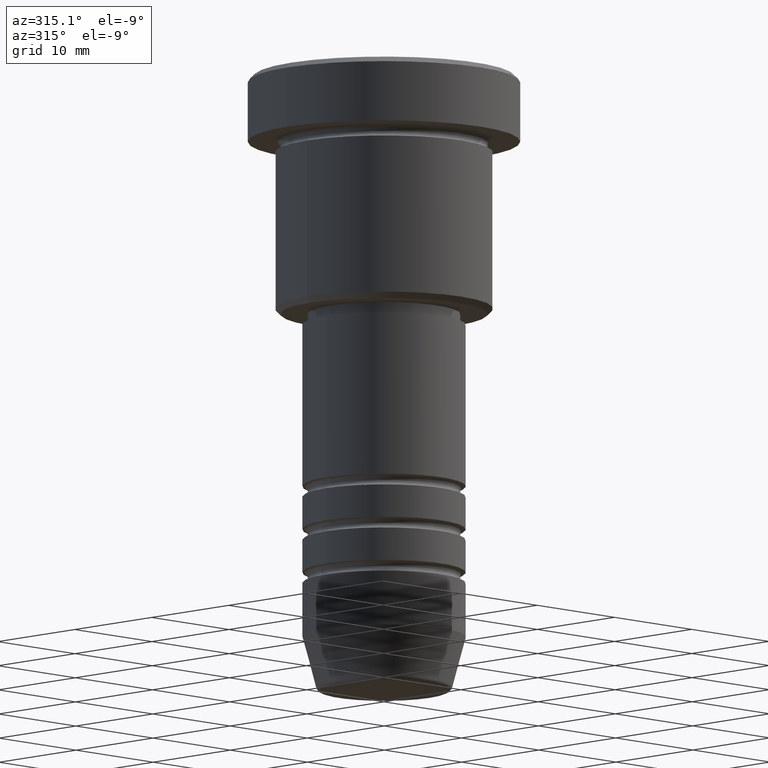
[diagram: clean part render]
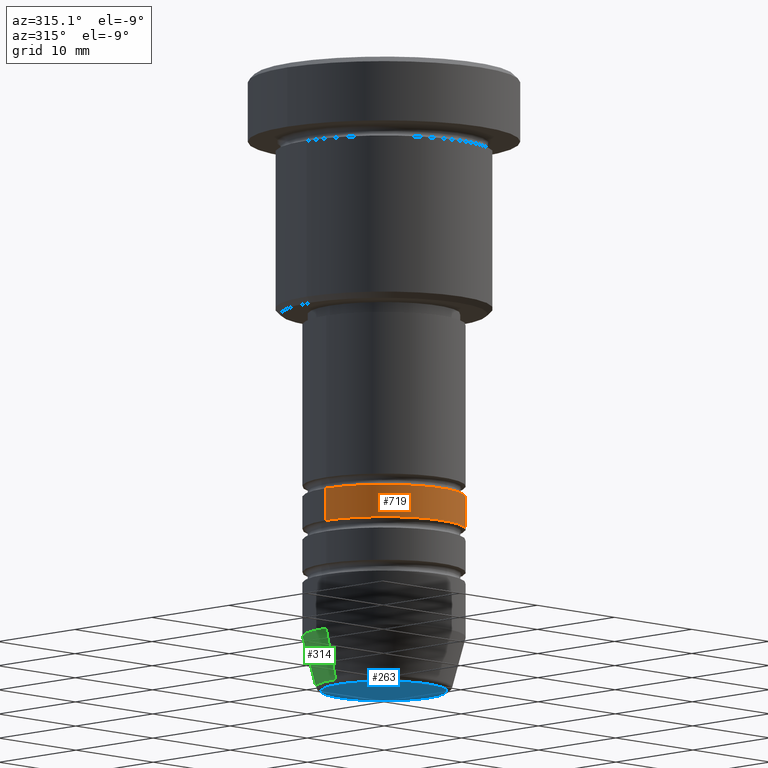
[diagram: same view with three faces highlighted in distinct colors, each labeled with its STEP entity id]
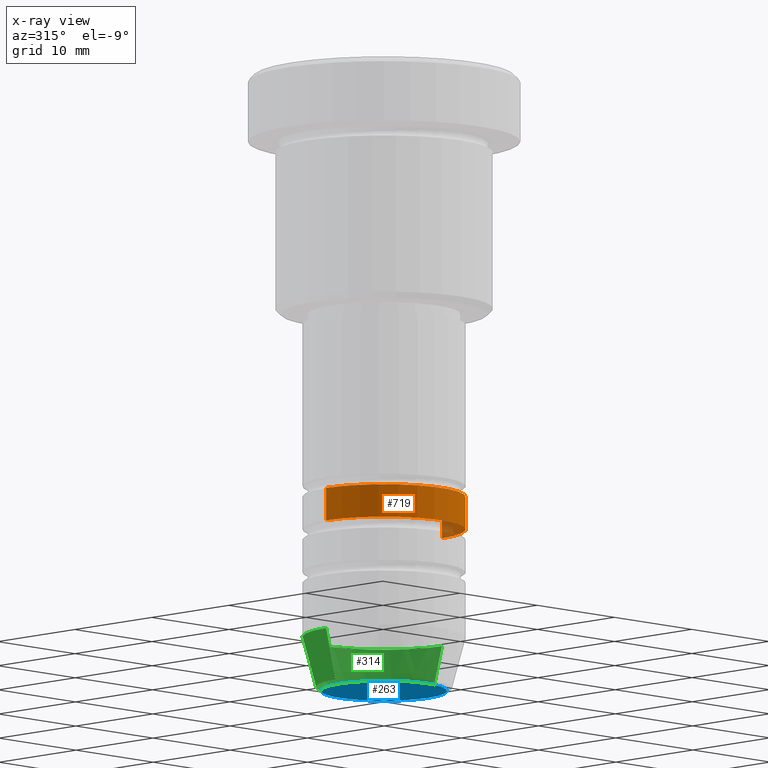
[diagram: x-ray of the same camera — body ghosted, the three highlighted faces saturated]
A machine part, auxiliary view with three faces highlighted in distinct colors.
The next image is the same camera in x-ray (body ghosted, the three faces saturated) — at least one of them is partly hidden behind the body in this view.
Their STEP definitions:

[orange] entity #719 — the highlighted cylindrical surface (partial cylindrical patch) has radius 7.5 mm, axis along (-0, -0, 1).
#8 = VECTOR ( 'NONE', #73, 1000.000000000000000 ) ;
#73 = DIRECTION ( 'NONE',  ( -0.000000000000000000, -0.000000000000000000, 1.000000000000000000 ) ) ;
#105 = CARTESIAN_POINT ( 'NONE',  ( 7.500000000000000000, 0.000000000000000000, -38.99999999999989342 ) ) ;
#125 = DIRECTION ( 'NONE',  ( -0.000000000000000000, -0.000000000000000000, 1.000000000000000000 ) ) ;
#152 = DIRECTION ( 'NONE',  ( -0.000000000000000000, -0.000000000000000000, 1.000000000000000000 ) ) ;
#221 = CARTESIAN_POINT ( 'NONE',  ( 7.500000000000001776, 0.000000000000000000, 0.000000000000000000 ) ) ;
#254 = ORIENTED_EDGE ( 'NONE', *, *, #435, .T. ) ;
#309 = ORIENTED_EDGE ( 'NONE', *, *, #1029, .T. ) ;
#323 = CARTESIAN_POINT ( 'NONE',  ( 0.000000000000000000, 0.000000000000000000, -41.99999999999991473 ) ) ;
#325 = CARTESIAN_POINT ( 'NONE',  ( -7.500000000000000000, 9.184850993605147944E-16, -38.99999999999989342 ) ) ;
#350 = AXIS2_PLACEMENT_3D ( 'NONE', #1165, #709, #437 ) ;
#384 = AXIS2_PLACEMENT_3D ( 'NONE', #323, #152, #792 ) ;
#401 = VECTOR ( 'NONE', #125, 1000.000000000000000 ) ;
#417 = DIRECTION ( 'NONE',  ( -0.000000000000000000, -0.000000000000000000, 1.000000000000000000 ) ) ;
#435 = EDGE_CURVE ( 'NONE', #1155, #609, #914, .T. ) ;
#437 = DIRECTION ( 'NONE',  ( 1.000000000000000000, 0.000000000000000000, 0.000000000000000000 ) ) ;
#486 = ORIENTED_EDGE ( 'NONE', *, *, #847, .F. ) ;
#499 = LINE ( 'NONE', #221, #401 ) ;
#509 = CARTESIAN_POINT ( 'NONE',  ( 0.000000000000000000, 0.000000000000000000, 0.000000000000000000 ) ) ;
#546 = CARTESIAN_POINT ( 'NONE',  ( -7.500000000000001776, 9.184850993605149917E-16, 0.000000000000000000 ) ) ;
#603 = EDGE_LOOP ( 'NONE', ( #963, #254, #309, #486 ) ) ;
#607 = FACE_OUTER_BOUND ( 'NONE', #603, .T. ) ;
#609 = VERTEX_POINT ( 'NONE', #1063 ) ;
#611 = LINE ( 'NONE', #546, #8 ) ;
#709 = DIRECTION ( 'NONE',  ( -0.000000000000000000, -0.000000000000000000, 1.000000000000000000 ) ) ;
#719 = ADVANCED_FACE ( 'NONE', ( #607 ), #866, .T. ) ;
#782 = DIRECTION ( 'NONE',  ( 1.000000000000000000, 0.000000000000000000, 0.000000000000000000 ) ) ;
#792 = DIRECTION ( 'NONE',  ( 1.000000000000000000, 0.000000000000000000, 0.000000000000000000 ) ) ;
#823 = EDGE_CURVE ( 'NONE', #1155, #1142, #611, .T. ) ;
#847 = EDGE_CURVE ( 'NONE', #1142, #898, #1058, .T. ) ;
#866 = CYLINDRICAL_SURFACE ( 'NONE', #1076, 7.500000000000001776 ) ;
#898 = VERTEX_POINT ( 'NONE', #105 ) ;
#914 = CIRCLE ( 'NONE', #384, 7.500000000000002665 ) ;
#963 = ORIENTED_EDGE ( 'NONE', *, *, #823, .F. ) ;
#1029 = EDGE_CURVE ( 'NONE', #609, #898, #499, .T. ) ;
#1058 = CIRCLE ( 'NONE', #350, 7.500000000000000000 ) ;
#1062 = CARTESIAN_POINT ( 'NONE',  ( -7.500000000000003553, 9.184850993605151889E-16, -41.99999999999991473 ) ) ;
#1063 = CARTESIAN_POINT ( 'NONE',  ( 7.500000000000002665, 0.000000000000000000, -41.99999999999991473 ) ) ;
#1076 = AXIS2_PLACEMENT_3D ( 'NONE', #509, #417, #782 ) ;
#1142 = VERTEX_POINT ( 'NONE', #325 ) ;
#1155 = VERTEX_POINT ( 'NONE', #1062 ) ;
#1165 = CARTESIAN_POINT ( 'NONE',  ( 0.000000000000000000, 0.000000000000000000, -38.99999999999989342 ) ) ;

[blue] entity #263 — the highlighted planar face has unit normal (0, -0, 1).
#17 = CARTESIAN_POINT ( 'NONE',  ( -5.776590543854903892, 7.370012612361443628E-16, -57.00000000000000000 ) ) ;
#70 = EDGE_CURVE ( 'NONE', #294, #950, #425, .T. ) ;
#184 = AXIS2_PLACEMENT_3D ( 'NONE', #1137, #310, #212 ) ;
#212 = DIRECTION ( 'NONE',  ( 1.000000000000000000, 0.000000000000000000, 0.000000000000000000 ) ) ;
#244 = ORIENTED_EDGE ( 'NONE', *, *, #1101, .T. ) ;
#263 = ADVANCED_FACE ( 'NONE', ( #289 ), #684, .F. ) ;
#289 = FACE_OUTER_BOUND ( 'NONE', #367, .T. ) ;
#294 = VERTEX_POINT ( 'NONE', #779 ) ;
#303 = DIRECTION ( 'NONE',  ( 1.000000000000000000, 0.000000000000000000, 0.000000000000000000 ) ) ;
#304 = AXIS2_PLACEMENT_3D ( 'NONE', #606, #421, #303 ) ;
#310 = DIRECTION ( 'NONE',  ( 0.000000000000000000, -0.000000000000000000, 1.000000000000000000 ) ) ;
#320 = DIRECTION ( 'NONE',  ( 1.000000000000000000, 0.000000000000000000, 0.000000000000000000 ) ) ;
#367 = EDGE_LOOP ( 'NONE', ( #749, #244 ) ) ;
#421 = DIRECTION ( 'NONE',  ( 0.000000000000000000, 0.000000000000000000, -1.000000000000000000 ) ) ;
#425 = CIRCLE ( 'NONE', #619, 5.776590543854903892 ) ;
#606 = CARTESIAN_POINT ( 'NONE',  ( 0.000000000000000000, 0.000000000000000000, -57.00000000000000000 ) ) ;
#619 = AXIS2_PLACEMENT_3D ( 'NONE', #877, #1146, #320 ) ;
#684 = PLANE ( 'NONE',  #184 ) ;
#749 = ORIENTED_EDGE ( 'NONE', *, *, #70, .T. ) ;
#779 = CARTESIAN_POINT ( 'NONE',  ( 5.776590543854903892, 0.000000000000000000, -57.00000000000000000 ) ) ;
#877 = CARTESIAN_POINT ( 'NONE',  ( 0.000000000000000000, 0.000000000000000000, -57.00000000000000000 ) ) ;
#927 = CIRCLE ( 'NONE', #304, 5.776590543854903892 ) ;
#950 = VERTEX_POINT ( 'NONE', #17 ) ;
#1101 = EDGE_CURVE ( 'NONE', #950, #294, #927, .T. ) ;
#1137 = CARTESIAN_POINT ( 'NONE',  ( 0.000000000000000000, 0.000000000000000000, -57.00000000000000000 ) ) ;
#1146 = DIRECTION ( 'NONE',  ( 0.000000000000000000, 0.000000000000000000, -1.000000000000000000 ) ) ;

[green] entity #314 — the highlighted conical surface has half-angle 15 deg.
#69 = AXIS2_PLACEMENT_3D ( 'NONE', #602, #969, #1095 ) ;
#81 = EDGE_CURVE ( 'NONE', #358, #889, #578, .T. ) ;
#100 = CARTESIAN_POINT ( 'NONE',  ( 7.500000000000000000, 0.000000000000000000, -52.00000000000000711 ) ) ;
#123 = VERTEX_POINT ( 'NONE', #924 ) ;
#128 = ORIENTED_EDGE ( 'NONE', *, *, #81, .F. ) ;
#136 = EDGE_CURVE ( 'NONE', #800, #358, #827, .T. ) ;
#178 = CONICAL_SURFACE ( 'NONE', #655, 7.500000000000000000, 0.2617993877991500740 ) ;
#271 = DIRECTION ( 'NONE',  ( -0.2588190451025213501, 3.169619151431772337E-17, 0.9659258262890680902 ) ) ;
#291 = DIRECTION ( 'NONE',  ( -0.000000000000000000, -0.000000000000000000, 1.000000000000000000 ) ) ;
#297 = CARTESIAN_POINT ( 'NONE',  ( -7.500000000000000000, 9.184850993605147944E-16, -52.00000000000000711 ) ) ;
#314 = ADVANCED_FACE ( 'NONE', ( #991 ), #178, .T. ) ;
#358 = VERTEX_POINT ( 'NONE', #1167 ) ;
#428 = ORIENTED_EDGE ( 'NONE', *, *, #514, .T. ) ;
#429 = DIRECTION ( 'NONE',  ( 1.000000000000000000, 0.000000000000000000, 0.000000000000000000 ) ) ;
#433 = DIRECTION ( 'NONE',  ( -0.000000000000000000, -0.000000000000000000, 1.000000000000000000 ) ) ;
#449 = DIRECTION ( 'NONE',  ( 1.000000000000000000, 0.000000000000000000, 0.000000000000000000 ) ) ;
#452 = EDGE_CURVE ( 'NONE', #800, #123, #1107, .T. ) ;
#479 = LINE ( 'NONE', #297, #982 ) ;
#514 = EDGE_CURVE ( 'NONE', #123, #889, #479, .T. ) ;
#525 = CARTESIAN_POINT ( 'NONE',  ( 0.000000000000000000, 0.000000000000000000, -52.00000000000000711 ) ) ;
#543 = CARTESIAN_POINT ( 'NONE',  ( 0.000000000000000000, 0.000000000000000000, -56.62940952255126348 ) ) ;
#556 = ORIENTED_EDGE ( 'NONE', *, *, #136, .F. ) ;
#578 = CIRCLE ( 'NONE', #69, 7.500000000000000000 ) ;
#596 = AXIS2_PLACEMENT_3D ( 'NONE', #543, #291, #449 ) ;
#602 = CARTESIAN_POINT ( 'NONE',  ( 0.000000000000000000, 0.000000000000000000, -52.00000000000000711 ) ) ;
#648 = CARTESIAN_POINT ( 'NONE',  ( -7.500000000000000000, 9.184850993605147944E-16, -52.00000000000000711 ) ) ;
#655 = AXIS2_PLACEMENT_3D ( 'NONE', #525, #433, #429 ) ;
#800 = VERTEX_POINT ( 'NONE', #895 ) ;
#827 = LINE ( 'NONE', #100, #1079 ) ;
#835 = DIRECTION ( 'NONE',  ( 0.2588190451025213501, 0.000000000000000000, 0.9659258262890680902 ) ) ;
#889 = VERTEX_POINT ( 'NONE', #648 ) ;
#895 = CARTESIAN_POINT ( 'NONE',  ( 6.259553456999435106, 0.000000000000000000, -56.62940952255126348 ) ) ;
#924 = CARTESIAN_POINT ( 'NONE',  ( -6.259553456999435106, 8.425296549405627514E-16, -56.62940952255126348 ) ) ;
#969 = DIRECTION ( 'NONE',  ( -0.000000000000000000, -0.000000000000000000, 1.000000000000000000 ) ) ;
#982 = VECTOR ( 'NONE', #271, 1000.000000000000000 ) ;
#991 = FACE_OUTER_BOUND ( 'NONE', #1166, .T. ) ;
#1050 = ORIENTED_EDGE ( 'NONE', *, *, #452, .T. ) ;
#1079 = VECTOR ( 'NONE', #835, 1000.000000000000000 ) ;
#1095 = DIRECTION ( 'NONE',  ( 1.000000000000000000, 0.000000000000000000, 0.000000000000000000 ) ) ;
#1107 = CIRCLE ( 'NONE', #596, 6.259553456999435106 ) ;
#1166 = EDGE_LOOP ( 'NONE', ( #1050, #428, #128, #556 ) ) ;
#1167 = CARTESIAN_POINT ( 'NONE',  ( 7.500000000000000000, 0.000000000000000000, -52.00000000000000711 ) ) ;